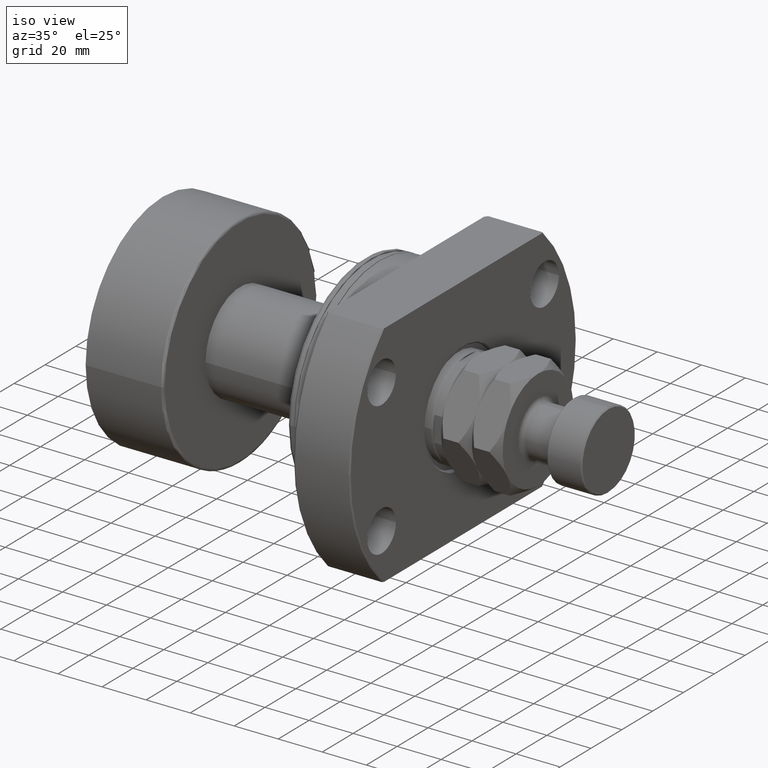
[diagram: clean part render]
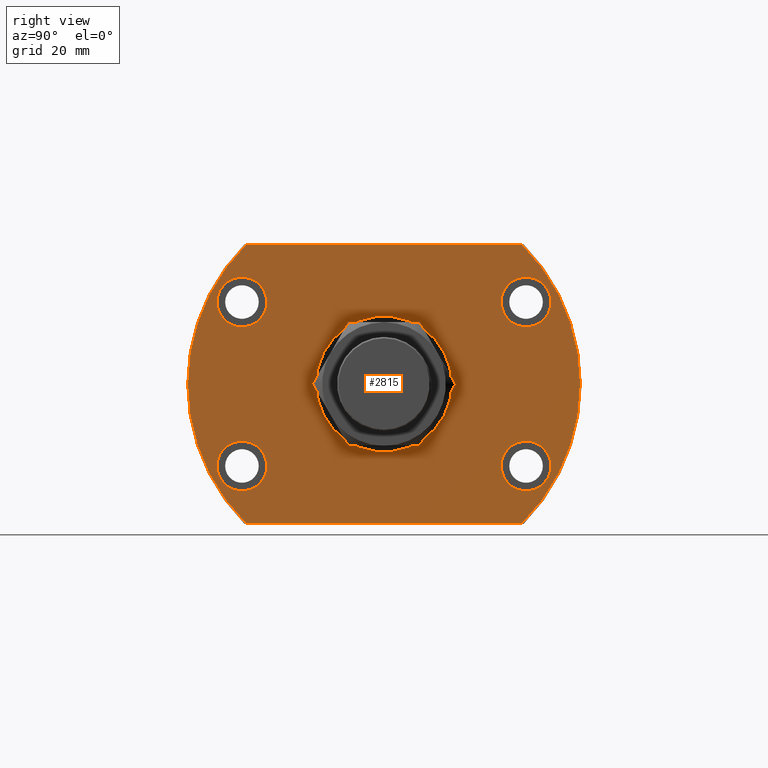
[diagram: tour spotlight — one face highlighted and labeled with its STEP entity id]
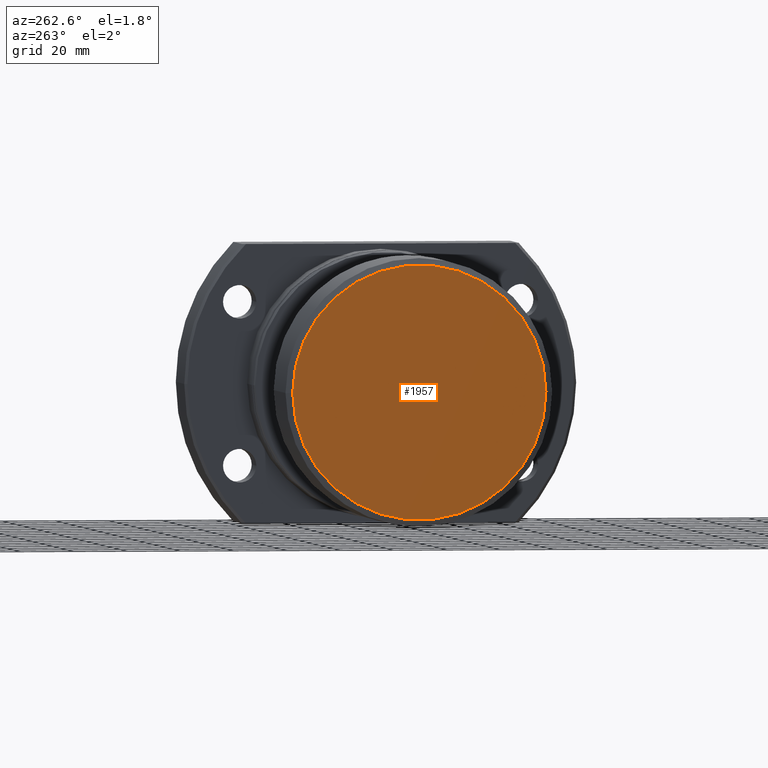
[diagram: tour spotlight — one face highlighted and labeled with its STEP entity id]
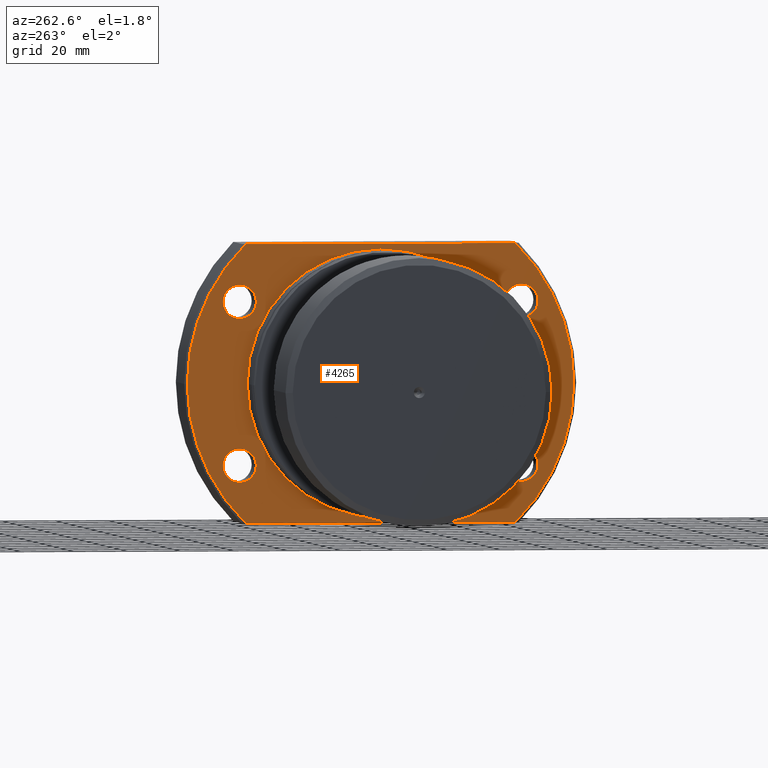
[diagram: tour spotlight — one face highlighted and labeled with its STEP entity id]
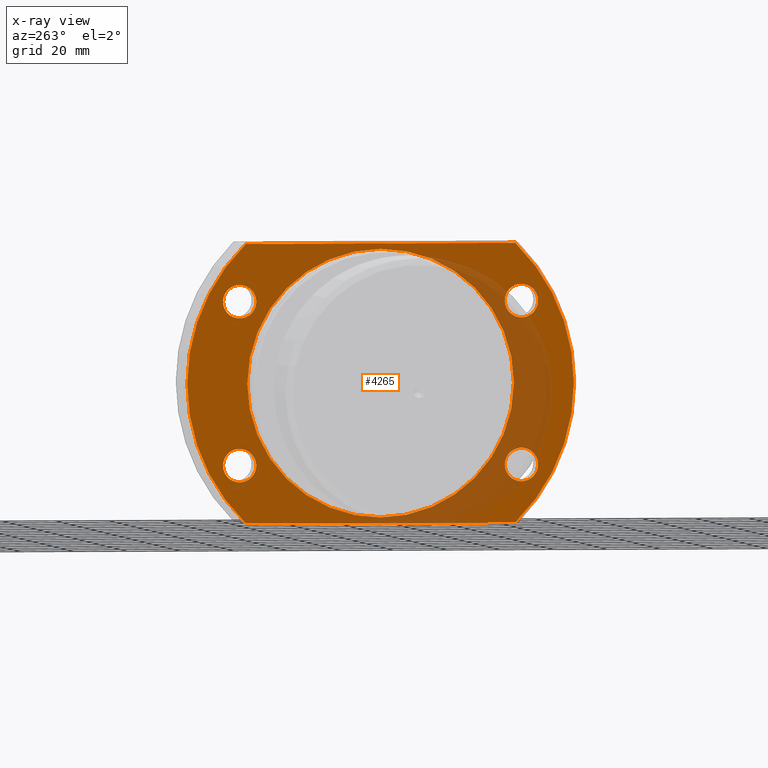
[diagram: x-ray of the same camera — body ghosted, this tour face saturated]
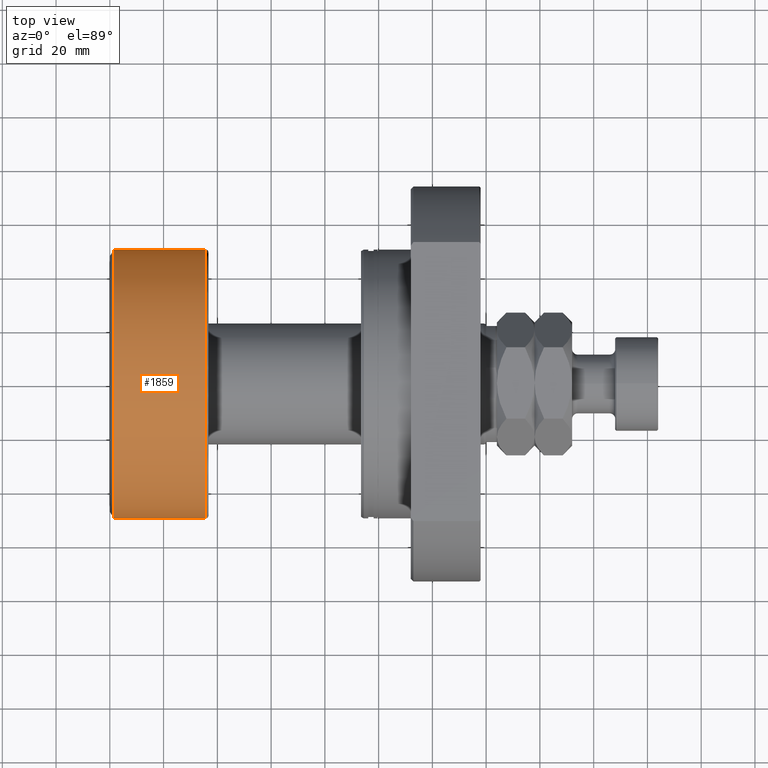
[diagram: tour spotlight — one face highlighted and labeled with its STEP entity id]
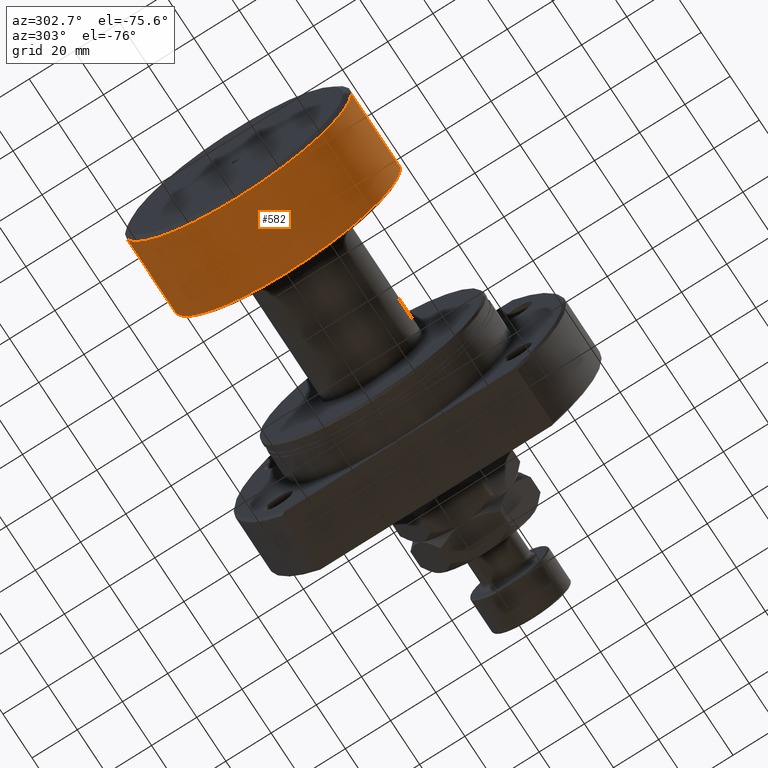
[diagram: tour spotlight — one face highlighted and labeled with its STEP entity id]
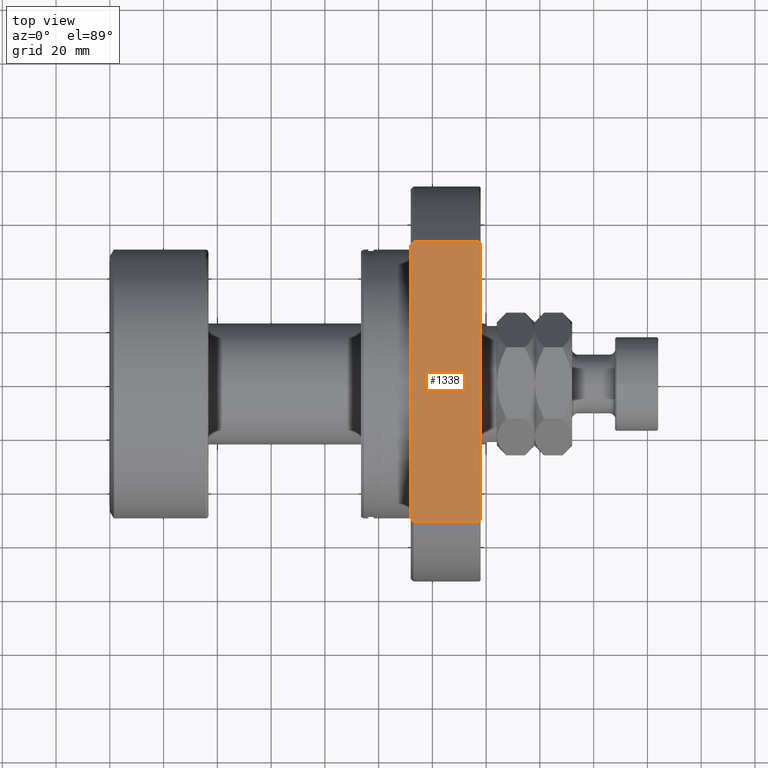
[diagram: tour spotlight — one face highlighted and labeled with its STEP entity id]
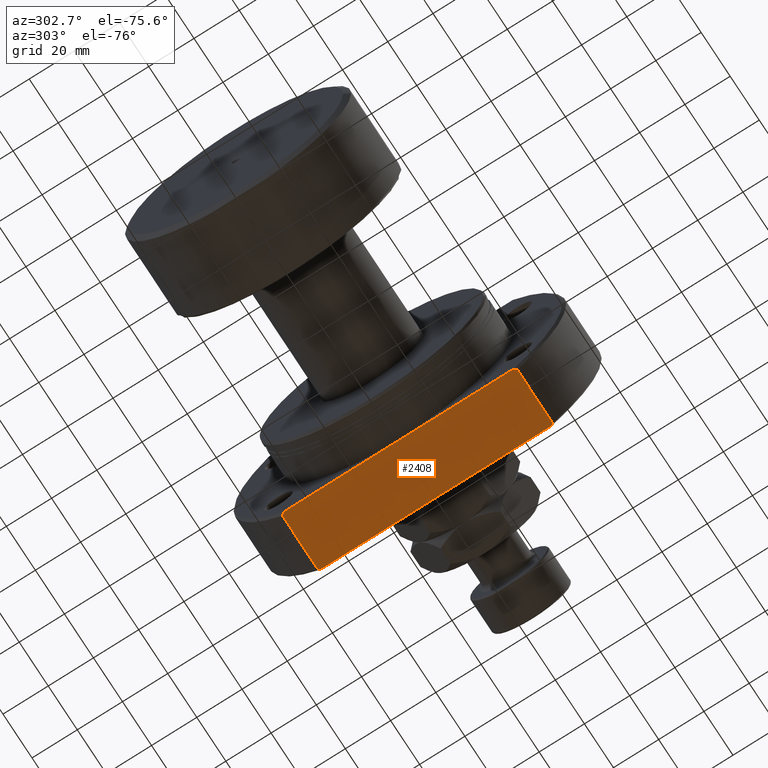
[diagram: tour spotlight — one face highlighted and labeled with its STEP entity id]
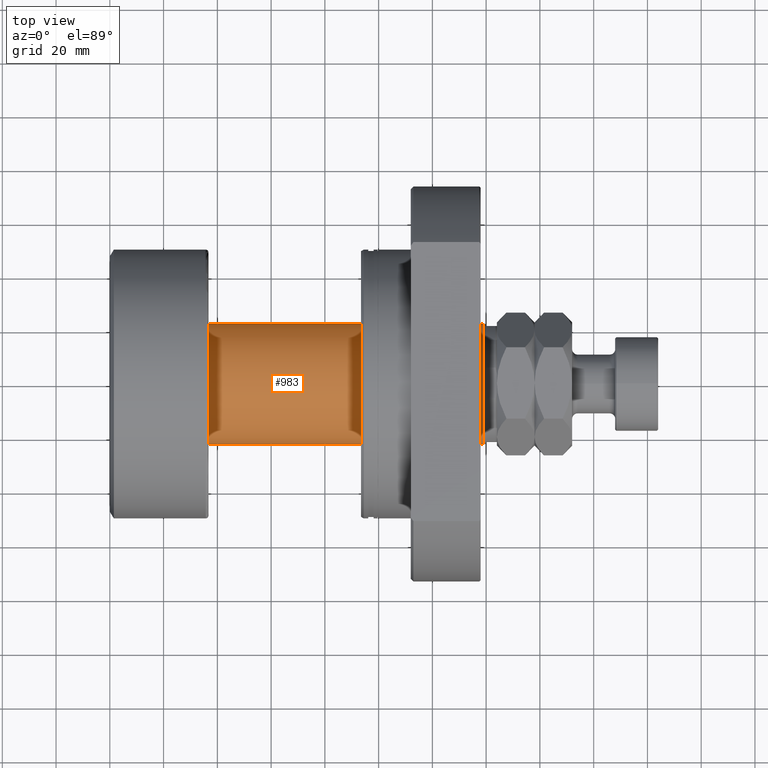
[diagram: tour spotlight — one face highlighted and labeled with its STEP entity id]
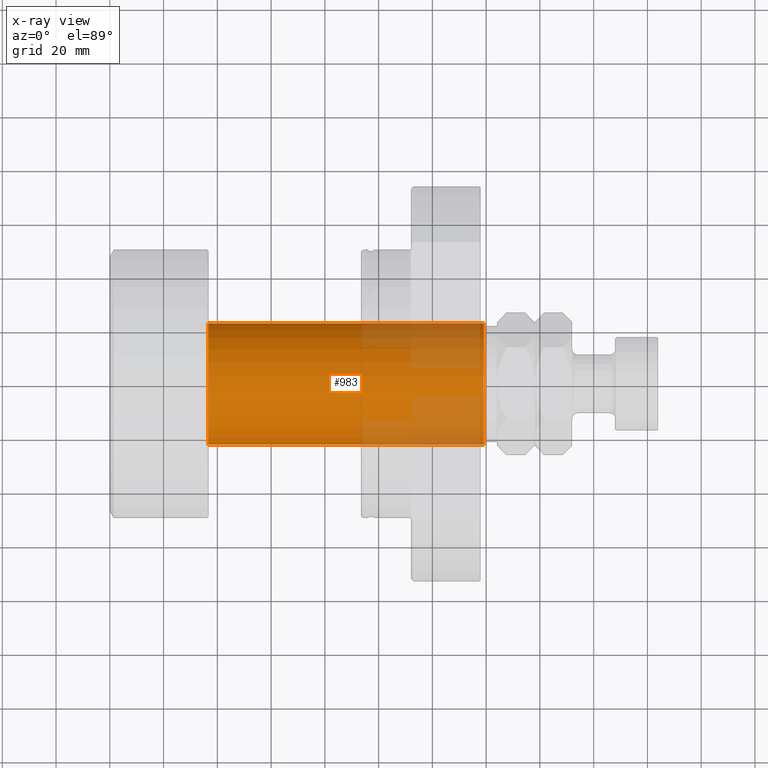
[diagram: x-ray of the same camera — body ghosted, this tour face saturated]
A machine part: a face-by-face anatomy tour. The part has 155 B-rep faces; the first image is the clean iso view, then the 8 largest visible faces are spotlighted one at a time (largest first), each with its STEP entity span.

Face 1 — right view, entity #2815. In plain terms, the highlighted planar face has unit normal (-1, -0, 0).
Definition (entity closure, byte-faithful):
#54 = EDGE_LOOP ( 'NONE', ( #1933, #265, #385, #4372, #1429 ) ) ;
#111 = AXIS2_PLACEMENT_3D ( 'NONE', #955, #1473, #4440 ) ;
#174 = FACE_BOUND ( 'NONE', #4080, .T. ) ;
#190 = CARTESIAN_POINT ( 'NONE',  ( 44.49999999999999289, -1.284477419691526336E-12, 0.000000000000000000 ) ) ;
#197 = VERTEX_POINT ( 'NONE', #2401 ) ;
#216 = DIRECTION ( 'NONE',  ( -1.000000000000000000, -5.504030557965630938E-17, 0.000000000000000000 ) ) ;
#219 = EDGE_CURVE ( 'NONE', #4505, #3651, #343, .T. ) ;
#246 = VERTEX_POINT ( 'NONE', #928 ) ;
#255 = LINE ( 'NONE', #1424, #1759 ) ;
#265 = ORIENTED_EDGE ( 'NONE', *, *, #310, .T. ) ;
#284 = VECTOR ( 'NONE', #4615, 1000.000000000000000 ) ;
#310 = EDGE_CURVE ( 'NONE', #3882, #4505, #1648, .T. ) ;
#341 = EDGE_CURVE ( 'NONE', #3936, #3148, #1727, .T. ) ;
#343 = CIRCLE ( 'NONE', #1329, 73.00000000000001421 ) ;
#373 = DIRECTION ( 'NONE',  ( 1.000000000000000000, -2.888547605177540648E-14, 0.000000000000000000 ) ) ;
#385 = ORIENTED_EDGE ( 'NONE', *, *, #219, .T. ) ;
#439 = DIRECTION ( 'NONE',  ( 1.000000000000000000, -2.888547605177540648E-14, 0.000000000000000000 ) ) ;
#452 = AXIS2_PLACEMENT_3D ( 'NONE', #2992, #457, #2760 ) ;
#457 = DIRECTION ( 'NONE',  ( 1.000000000000000000, -2.886466111666351885E-14, 0.000000000000000000 ) ) ;
#490 = DIRECTION ( 'NONE',  ( 5.504030557965630938E-17, -1.000000000000000000, 0.000000000000000000 ) ) ;
#595 = CARTESIAN_POINT ( 'NONE',  ( 44.49999999999998579, 51.23475382979800230, 52.00000000000000000 ) ) ;
#596 = AXIS2_PLACEMENT_3D ( 'NONE', #3397, #1509, #2256 ) ;
#627 = CARTESIAN_POINT ( 'NONE',  ( 44.49999999999998579, 51.23475382979800941, -52.00000000000000000 ) ) ;
#665 = DIRECTION ( 'NONE',  ( 2.925587700025750053E-14, 1.000000000000000000, 0.000000000000000000 ) ) ;
#670 = ORIENTED_EDGE ( 'NONE', *, *, #2416, .T. ) ;
#738 = EDGE_CURVE ( 'NONE', #4053, #4429, #4067, .T. ) ;
#815 = DIRECTION ( 'NONE',  ( 2.925587700025750053E-14, 1.000000000000000000, 0.000000000000000000 ) ) ;
#818 = DIRECTION ( 'NONE',  ( 2.925587700025750053E-14, 1.000000000000000000, 0.000000000000000000 ) ) ;
#901 = FACE_BOUND ( 'NONE', #3723, .T. ) ;
#922 = FACE_OUTER_BOUND ( 'NONE', #54, .T. ) ;
#928 = CARTESIAN_POINT ( 'NONE',  ( 44.50000000000125056, 43.59999999999871534, 30.50000000000000000 ) ) ;
#951 = FACE_BOUND ( 'NONE', #3502, .T. ) ;
#955 = CARTESIAN_POINT ( 'NONE',  ( 44.49999999999999289, 2.449293598294705330E-15, 0.000000000000000000 ) ) ;
#957 = EDGE_CURVE ( 'NONE', #4686, #1206, #1893, .T. ) ;
#1021 = DIRECTION ( 'NONE',  ( -1.000000000000000000, -5.504030557965630938E-17, 0.000000000000000000 ) ) ;
#1128 = EDGE_CURVE ( 'NONE', #2698, #197, #3185, .T. ) ;
#1165 = ORIENTED_EDGE ( 'NONE', *, *, #1378, .F. ) ;
#1175 = CIRCLE ( 'NONE', #1267, 9.250000000000001776 ) ;
#1206 = VERTEX_POINT ( 'NONE', #1802 ) ;
#1263 = DIRECTION ( 'NONE',  ( 1.000000000000000000, -2.888547605177540648E-14, 0.000000000000000000 ) ) ;
#1267 = AXIS2_PLACEMENT_3D ( 'NONE', #3084, #2754, #1950 ) ;
#1329 = AXIS2_PLACEMENT_3D ( 'NONE', #2831, #3164, #4368 ) ;
#1336 = CARTESIAN_POINT ( 'NONE',  ( 44.50000000000000000, -73.00000000000001421, 0.000000000000000000 ) ) ;
#1378 = EDGE_CURVE ( 'NONE', #3148, #3936, #1175, .T. ) ;
#1424 = CARTESIAN_POINT ( 'NONE',  ( 44.50000000000000000, -73.00000000000001421, -52.00000000000000000 ) ) ;
#1429 = ORIENTED_EDGE ( 'NONE', *, *, #1732, .T. ) ;
#1473 = DIRECTION ( 'NONE',  ( 1.000000000000000000, 5.504030557965630938E-17, -0.000000000000000000 ) ) ;
#1509 = DIRECTION ( 'NONE',  ( 1.000000000000000000, -2.888547605177540648E-14, 0.000000000000000000 ) ) ;
#1536 = VERTEX_POINT ( 'NONE', #595 ) ;
#1544 = DIRECTION ( 'NONE',  ( 1.000000000000000000, 5.504030557965630938E-17, -0.000000000000000000 ) ) ;
#1593 = CARTESIAN_POINT ( 'NONE',  ( 44.49999999999846523, -52.85000000000128750, 30.50000000000000000 ) ) ;
#1600 = CARTESIAN_POINT ( 'NONE',  ( 44.49999999999846523, -52.85000000000128750, -30.50000000000000000 ) ) ;
#1648 = CIRCLE ( 'NONE', #111, 73.00000000000001421 ) ;
#1695 = CARTESIAN_POINT ( 'NONE',  ( 44.49999999999873523, -43.60000000000128040, 30.50000000000000000 ) ) ;
#1711 = CARTESIAN_POINT ( 'NONE',  ( 44.49999999999999289, -25.25000000000129674, 3.092233167847068013E-15 ) ) ;
#1727 = CIRCLE ( 'NONE', #2367, 9.250000000000001776 ) ;
#1732 = EDGE_CURVE ( 'NONE', #3253, #1536, #3753, .T. ) ;
#1759 = VECTOR ( 'NONE', #2966, 1000.000000000000000 ) ;
#1770 = CARTESIAN_POINT ( 'NONE',  ( 44.50000000000178346, 62.09999999999871534, 30.50000000000000000 ) ) ;
#1802 = CARTESIAN_POINT ( 'NONE',  ( 44.49999999999819522, -62.10000000000128750, -30.50000000000000000 ) ) ;
#1860 = CARTESIAN_POINT ( 'NONE',  ( 44.49999999999873523, -43.60000000000128040, -30.50000000000000000 ) ) ;
#1888 = AXIS2_PLACEMENT_3D ( 'NONE', #190, #216, #2492 ) ;
#1893 = CIRCLE ( 'NONE', #596, 9.250000000000001776 ) ;
#1933 = ORIENTED_EDGE ( 'NONE', *, *, #3526, .F. ) ;
#1950 = DIRECTION ( 'NONE',  ( 2.925587700025750053E-14, 1.000000000000000000, 0.000000000000000000 ) ) ;
#1977 = AXIS2_PLACEMENT_3D ( 'NONE', #2908, #1263, #815 ) ;
#2003 = CARTESIAN_POINT ( 'NONE',  ( 44.49999999999999289, 51.94468211472779728, 52.00000000000000000 ) ) ;
#2009 = ORIENTED_EDGE ( 'NONE', *, *, #2597, .F. ) ;
#2051 = ORIENTED_EDGE ( 'NONE', *, *, #738, .T. ) ;
#2063 = AXIS2_PLACEMENT_3D ( 'NONE', #4953, #1544, #3488 ) ;
#2067 = PLANE ( 'NONE',  #2879 ) ;
#2084 = CARTESIAN_POINT ( 'NONE',  ( 44.50000000000179057, 62.09999999999871534, -30.50000000000000000 ) ) ;
#2142 = CARTESIAN_POINT ( 'NONE',  ( 44.50000000000152056, 52.84999999999871534, -30.50000000000000000 ) ) ;
#2256 = DIRECTION ( 'NONE',  ( 2.925587700025750053E-14, 1.000000000000000000, 0.000000000000000000 ) ) ;
#2300 = AXIS2_PLACEMENT_3D ( 'NONE', #4764, #2833, #4023 ) ;
#2367 = AXIS2_PLACEMENT_3D ( 'NONE', #2142, #4831, #665 ) ;
#2389 = AXIS2_PLACEMENT_3D ( 'NONE', #3703, #1021, #2560 ) ;
#2401 = CARTESIAN_POINT ( 'NONE',  ( 44.49999999999819522, -62.10000000000128750, 30.50000000000000000 ) ) ;
#2416 = EDGE_CURVE ( 'NONE', #4429, #4053, #4795, .T. ) ;
#2443 = FACE_BOUND ( 'NONE', #2922, .T. ) ;
#2467 = DIRECTION ( 'NONE',  ( -1.000000000000000000, -5.504030557965630938E-17, 0.000000000000000000 ) ) ;
#2492 = DIRECTION ( 'NONE',  ( 0.000000000000000000, -1.000000000000000000, 0.000000000000000000 ) ) ;
#2495 = CARTESIAN_POINT ( 'NONE',  ( 44.50000000000000000, -73.00000000000001421, 0.000000000000000000 ) ) ;
#2560 = DIRECTION ( 'NONE',  ( 0.000000000000000000, -1.000000000000000000, 0.000000000000000000 ) ) ;
#2581 = EDGE_LOOP ( 'NONE', ( #1165, #4591 ) ) ;
#2597 = EDGE_CURVE ( 'NONE', #3975, #246, #3934, .T. ) ;
#2658 = ORIENTED_EDGE ( 'NONE', *, *, #3902, .F. ) ;
#2698 = VERTEX_POINT ( 'NONE', #1695 ) ;
#2722 = CIRCLE ( 'NONE', #2300, 9.250000000000001776 ) ;
#2754 = DIRECTION ( 'NONE',  ( 1.000000000000000000, -2.888547605177540648E-14, 0.000000000000000000 ) ) ;
#2760 = DIRECTION ( 'NONE',  ( 2.850572630794320387E-14, 1.000000000000000000, 0.000000000000000000 ) ) ;
#2772 = CARTESIAN_POINT ( 'NONE',  ( 44.49999999999999289, -51.23475382979801651, 52.00000000000000000 ) ) ;
#2794 = CIRCLE ( 'NONE', #4645, 9.250000000000001776 ) ;
#2803 = FACE_BOUND ( 'NONE', #2581, .T. ) ;
#2815 = ADVANCED_FACE ( 'NONE', ( #951, #901, #2443, #174, #2803, #922 ), #2067, .F. ) ;
#2831 = CARTESIAN_POINT ( 'NONE',  ( 44.49999999999999289, 2.449293598294705330E-15, 0.000000000000000000 ) ) ;
#2833 = DIRECTION ( 'NONE',  ( 1.000000000000000000, -2.886466111666351885E-14, 0.000000000000000000 ) ) ;
#2879 = AXIS2_PLACEMENT_3D ( 'NONE', #2495, #2467, #490 ) ;
#2908 = CARTESIAN_POINT ( 'NONE',  ( 44.49999999999846523, -52.85000000000128750, 30.50000000000000000 ) ) ;
#2922 = EDGE_LOOP ( 'NONE', ( #3795, #2990 ) ) ;
#2966 = DIRECTION ( 'NONE',  ( -5.504030557965630938E-17, 1.000000000000000000, -0.000000000000000000 ) ) ;
#2990 = ORIENTED_EDGE ( 'NONE', *, *, #4296, .F. ) ;
#2992 = CARTESIAN_POINT ( 'NONE',  ( 44.50000000000152056, 52.84999999999871534, 30.50000000000000000 ) ) ;
#3084 = CARTESIAN_POINT ( 'NONE',  ( 44.50000000000152056, 52.84999999999871534, -30.50000000000000000 ) ) ;
#3138 = DIRECTION ( 'NONE',  ( 2.925587700025750053E-14, 1.000000000000000000, 0.000000000000000000 ) ) ;
#3148 = VERTEX_POINT ( 'NONE', #2084 ) ;
#3164 = DIRECTION ( 'NONE',  ( 1.000000000000000000, 5.504030557965630938E-17, -0.000000000000000000 ) ) ;
#3185 = CIRCLE ( 'NONE', #1977, 9.250000000000001776 ) ;
#3253 = VERTEX_POINT ( 'NONE', #627 ) ;
#3285 = EDGE_CURVE ( 'NONE', #3651, #3253, #255, .T. ) ;
#3397 = CARTESIAN_POINT ( 'NONE',  ( 44.49999999999846523, -52.85000000000128750, -30.50000000000000000 ) ) ;
#3488 = DIRECTION ( 'NONE',  ( -9.505334114941407284E-17, 1.000000000000000000, 0.000000000000000000 ) ) ;
#3502 = EDGE_LOOP ( 'NONE', ( #2051, #670 ) ) ;
#3526 = EDGE_CURVE ( 'NONE', #3882, #1536, #3878, .T. ) ;
#3647 = EDGE_CURVE ( 'NONE', #246, #3975, #2722, .T. ) ;
#3651 = VERTEX_POINT ( 'NONE', #4100 ) ;
#3693 = AXIS2_PLACEMENT_3D ( 'NONE', #1593, #439, #818 ) ;
#3703 = CARTESIAN_POINT ( 'NONE',  ( 44.49999999999999289, -1.284477419691526336E-12, 0.000000000000000000 ) ) ;
#3723 = EDGE_LOOP ( 'NONE', ( #2009, #3971 ) ) ;
#3753 = CIRCLE ( 'NONE', #2063, 73.00000000000001421 ) ;
#3795 = ORIENTED_EDGE ( 'NONE', *, *, #1128, .F. ) ;
#3878 = LINE ( 'NONE', #2003, #284 ) ;
#3882 = VERTEX_POINT ( 'NONE', #2772 ) ;
#3902 = EDGE_CURVE ( 'NONE', #1206, #4686, #2794, .T. ) ;
#3907 = ORIENTED_EDGE ( 'NONE', *, *, #957, .F. ) ;
#3920 = CARTESIAN_POINT ( 'NONE',  ( 44.50000000000124345, 43.59999999999871534, -30.50000000000000000 ) ) ;
#3934 = CIRCLE ( 'NONE', #452, 9.250000000000001776 ) ;
#3936 = VERTEX_POINT ( 'NONE', #3920 ) ;
#3971 = ORIENTED_EDGE ( 'NONE', *, *, #3647, .F. ) ;
#3975 = VERTEX_POINT ( 'NONE', #1770 ) ;
#4023 = DIRECTION ( 'NONE',  ( 2.850572630794320387E-14, 1.000000000000000000, 0.000000000000000000 ) ) ;
#4053 = VERTEX_POINT ( 'NONE', #4415 ) ;
#4067 = CIRCLE ( 'NONE', #1888, 25.24999999999855049 ) ;
#4080 = EDGE_LOOP ( 'NONE', ( #3907, #2658 ) ) ;
#4095 = CIRCLE ( 'NONE', #3693, 9.250000000000001776 ) ;
#4100 = CARTESIAN_POINT ( 'NONE',  ( 44.49999999999999289, -51.23475382979800230, -52.00000000000000000 ) ) ;
#4296 = EDGE_CURVE ( 'NONE', #197, #2698, #4095, .T. ) ;
#4368 = DIRECTION ( 'NONE',  ( -9.505334114941407284E-17, 1.000000000000000000, 0.000000000000000000 ) ) ;
#4372 = ORIENTED_EDGE ( 'NONE', *, *, #3285, .T. ) ;
#4415 = CARTESIAN_POINT ( 'NONE',  ( 44.49999999999999289, 25.24999999999726441, 0.000000000000000000 ) ) ;
#4429 = VERTEX_POINT ( 'NONE', #1711 ) ;
#4440 = DIRECTION ( 'NONE',  ( -9.505334114941407284E-17, 1.000000000000000000, 0.000000000000000000 ) ) ;
#4505 = VERTEX_POINT ( 'NONE', #1336 ) ;
#4591 = ORIENTED_EDGE ( 'NONE', *, *, #341, .F. ) ;
#4615 = DIRECTION ( 'NONE',  ( -0.000000000000000000, 1.000000000000000000, 0.000000000000000000 ) ) ;
#4645 = AXIS2_PLACEMENT_3D ( 'NONE', #1600, #373, #3138 ) ;
#4686 = VERTEX_POINT ( 'NONE', #1860 ) ;
#4764 = CARTESIAN_POINT ( 'NONE',  ( 44.50000000000152056, 52.84999999999871534, 30.50000000000000000 ) ) ;
#4795 = CIRCLE ( 'NONE', #2389, 25.24999999999855049 ) ;
#4831 = DIRECTION ( 'NONE',  ( 1.000000000000000000, -2.888547605177540648E-14, 0.000000000000000000 ) ) ;
#4953 = CARTESIAN_POINT ( 'NONE',  ( 44.49999999999999289, 2.449293598294705330E-15, 0.000000000000000000 ) ) ;

Face 2 — auxiliary view, entity #1957. In plain terms, the highlighted planar face has unit normal (-1, -0, 0).
Definition (entity closure, byte-faithful):
#66 = DIRECTION ( 'NONE',  ( 1.069542322069065647E-17, -1.000000000000000000, 0.000000000000000000 ) ) ;
#112 = VERTEX_POINT ( 'NONE', #1118 ) ;
#368 = CARTESIAN_POINT ( 'NONE',  ( 4.801007089984315887E-15, 47.50000000000000000, 0.000000000000000000 ) ) ;
#456 = CIRCLE ( 'NONE', #532, 47.50000000000000000 ) ;
#492 = VERTEX_POINT ( 'NONE', #368 ) ;
#532 = AXIS2_PLACEMENT_3D ( 'NONE', #1782, #2932, #1014 ) ;
#579 = CARTESIAN_POINT ( 'NONE',  ( 2.654519846483561026E-15, 0.000000000000000000, 0.000000000000000000 ) ) ;
#606 = DIRECTION ( 'NONE',  ( 1.069542322069059484E-17, -1.000000000000000000, 0.000000000000000000 ) ) ;
#690 = CARTESIAN_POINT ( 'NONE',  ( 5.817072295949928215E-15, -47.50000000000000000, 5.970153145843347150E-15 ) ) ;
#924 = VERTEX_POINT ( 'NONE', #1156 ) ;
#926 = EDGE_CURVE ( 'NONE', #112, #924, #4227, .T. ) ;
#1014 = DIRECTION ( 'NONE',  ( 1.069542322069065647E-17, -1.000000000000000000, 0.000000000000000000 ) ) ;
#1074 = ORIENTED_EDGE ( 'NONE', *, *, #3275, .T. ) ;
#1118 = CARTESIAN_POINT ( 'NONE',  ( 2.654519846483561026E-15, 2.541142108230750183E-16, -2.074999999999993516 ) ) ;
#1156 = CARTESIAN_POINT ( 'NONE',  ( 2.654519846483561026E-15, 0.000000000000000000, 2.074999999999993516 ) ) ;
#1331 = EDGE_LOOP ( 'NONE', ( #1074, #4171 ) ) ;
#1423 = CIRCLE ( 'NONE', #1667, 2.074999999999993516 ) ;
#1667 = AXIS2_PLACEMENT_3D ( 'NONE', #579, #2865, #606 ) ;
#1782 = CARTESIAN_POINT ( 'NONE',  ( 5.309039692967122051E-15, 5.678242641172895614E-32, 0.000000000000000000 ) ) ;
#1957 = ADVANCED_FACE ( 'NONE', ( #4111, #2178 ), #2586, .T. ) ;
#2160 = DIRECTION ( 'NONE',  ( -1.000000000000000000, -1.069542322069065801E-17, 0.000000000000000000 ) ) ;
#2178 = FACE_OUTER_BOUND ( 'NONE', #1331, .T. ) ;
#2253 = EDGE_CURVE ( 'NONE', #2950, #492, #2466, .T. ) ;
#2307 = DIRECTION ( 'NONE',  ( 1.069542322069059484E-17, -1.000000000000000000, 0.000000000000000000 ) ) ;
#2348 = EDGE_CURVE ( 'NONE', #924, #112, #1423, .T. ) ;
#2466 = CIRCLE ( 'NONE', #4871, 47.50000000000000000 ) ;
#2532 = ORIENTED_EDGE ( 'NONE', *, *, #926, .T. ) ;
#2538 = DIRECTION ( 'NONE',  ( 1.069542322069065801E-17, -1.000000000000000000, 0.000000000000000000 ) ) ;
#2547 = AXIS2_PLACEMENT_3D ( 'NONE', #4130, #2160, #2538 ) ;
#2586 = PLANE ( 'NONE',  #2547 ) ;
#2865 = DIRECTION ( 'NONE',  ( 1.000000000000000000, 1.069542322069065801E-17, 0.000000000000000000 ) ) ;
#2932 = DIRECTION ( 'NONE',  ( -1.000000000000000000, -1.069542322069065801E-17, -0.000000000000000000 ) ) ;
#2940 = AXIS2_PLACEMENT_3D ( 'NONE', #3480, #4225, #2307 ) ;
#2950 = VERTEX_POINT ( 'NONE', #690 ) ;
#3005 = ORIENTED_EDGE ( 'NONE', *, *, #2348, .T. ) ;
#3012 = EDGE_LOOP ( 'NONE', ( #3005, #2532 ) ) ;
#3172 = DIRECTION ( 'NONE',  ( -1.000000000000000000, -1.069542322069065801E-17, -0.000000000000000000 ) ) ;
#3275 = EDGE_CURVE ( 'NONE', #492, #2950, #456, .T. ) ;
#3480 = CARTESIAN_POINT ( 'NONE',  ( 2.654519846483561026E-15, 0.000000000000000000, 0.000000000000000000 ) ) ;
#4111 = FACE_BOUND ( 'NONE', #3012, .T. ) ;
#4130 = CARTESIAN_POINT ( 'NONE',  ( 2.654519846483561026E-15, 2.839121320586447807E-32, 0.000000000000000000 ) ) ;
#4171 = ORIENTED_EDGE ( 'NONE', *, *, #2253, .T. ) ;
#4225 = DIRECTION ( 'NONE',  ( 1.000000000000000000, 1.069542322069065801E-17, 0.000000000000000000 ) ) ;
#4227 = CIRCLE ( 'NONE', #2940, 2.074999999999993516 ) ;
#4378 = CARTESIAN_POINT ( 'NONE',  ( 5.309039692967122051E-15, 5.678242641172895614E-32, 0.000000000000000000 ) ) ;
#4871 = AXIS2_PLACEMENT_3D ( 'NONE', #4378, #3172, #66 ) ;

Face 3 — auxiliary view, entity #4265. An x-ray twin of the same camera follows (body ghosted, this face saturated) — the face is partly hidden behind the body. In plain terms, the highlighted planar face has unit normal (1, 0, 0).
Definition (entity closure, byte-faithful):
#58 = CARTESIAN_POINT ( 'NONE',  ( 18.50000000000000355, 72.49999999999992895, 0.000000000000000000 ) ) ;
#128 = EDGE_CURVE ( 'NONE', #2623, #3466, #2857, .T. ) ;
#135 = EDGE_CURVE ( 'NONE', #2007, #2582, #745, .T. ) ;
#191 = DIRECTION ( 'NONE',  ( 0.000000000000000000, 1.000000000000000000, 0.000000000000000000 ) ) ;
#271 = DIRECTION ( 'NONE',  ( 0.000000000000000000, 1.000000000000000000, 0.000000000000000000 ) ) ;
#354 = CIRCLE ( 'NONE', #4861, 72.49999999999992895 ) ;
#356 = DIRECTION ( 'NONE',  ( -6.938893903907228378E-17, 1.000000000000000000, 0.000000000000000000 ) ) ;
#363 = CARTESIAN_POINT ( 'NONE',  ( 18.50000000000000711, -52.85000000000052722, 30.50000000000000000 ) ) ;
#398 = VERTEX_POINT ( 'NONE', #3691 ) ;
#477 = ORIENTED_EDGE ( 'NONE', *, *, #4809, .T. ) ;
#499 = VERTEX_POINT ( 'NONE', #3808 ) ;
#520 = CARTESIAN_POINT ( 'NONE',  ( 18.50000000000000711, -50.00000000000000000, 52.00000000000000000 ) ) ;
#537 = CARTESIAN_POINT ( 'NONE',  ( 18.50000000000000355, -50.00000000000000000, 6.123233995736766085E-15 ) ) ;
#664 = AXIS2_PLACEMENT_3D ( 'NONE', #4585, #3923, #1303 ) ;
#675 = VECTOR ( 'NONE', #1647, 1000.000000000000000 ) ;
#694 = AXIS2_PLACEMENT_3D ( 'NONE', #363, #3483, #1915 ) ;
#716 = FACE_BOUND ( 'NONE', #2174, .T. ) ;
#722 = DIRECTION ( 'NONE',  ( 1.000000000000000000, 5.504030557965630938E-17, -0.000000000000000000 ) ) ;
#745 = CIRCLE ( 'NONE', #664, 6.249999999999998224 ) ;
#808 = DIRECTION ( 'NONE',  ( 1.000000000000000000, 5.504030557965630938E-17, -0.000000000000000000 ) ) ;
#929 = LINE ( 'NONE', #520, #675 ) ;
#963 = EDGE_LOOP ( 'NONE', ( #2080, #3884 ) ) ;
#1004 = DIRECTION ( 'NONE',  ( 1.000000000000000000, 5.504030557965630938E-17, -0.000000000000000000 ) ) ;
#1051 = EDGE_CURVE ( 'NONE', #3761, #2623, #4073, .T. ) ;
#1072 = CARTESIAN_POINT ( 'NONE',  ( 18.50000000000000711, -52.85000000000053433, -30.50000000000000000 ) ) ;
#1075 = DIRECTION ( 'NONE',  ( 1.000000000000000000, 5.504030557965630938E-17, -0.000000000000000000 ) ) ;
#1093 = EDGE_LOOP ( 'NONE', ( #4198, #4257, #3696, #477, #3336 ) ) ;
#1102 = DIRECTION ( 'NONE',  ( 1.000000000000000000, 5.504030557965630938E-17, -0.000000000000000000 ) ) ;
#1109 = FACE_BOUND ( 'NONE', #1403, .T. ) ;
#1111 = AXIS2_PLACEMENT_3D ( 'NONE', #1786, #1075, #4916 ) ;
#1112 = CIRCLE ( 'NONE', #694, 6.249999999999998224 ) ;
#1129 = DIRECTION ( 'NONE',  ( 1.000000000000000000, 5.504030557965630938E-17, -0.000000000000000000 ) ) ;
#1171 = AXIS2_PLACEMENT_3D ( 'NONE', #1234, #1293, #1380 ) ;
#1184 = AXIS2_PLACEMENT_3D ( 'NONE', #1800, #722, #271 ) ;
#1234 = CARTESIAN_POINT ( 'NONE',  ( 18.50000000000000711, 1.018245653223641951E-15, 0.000000000000000000 ) ) ;
#1290 = VERTEX_POINT ( 'NONE', #4963 ) ;
#1293 = DIRECTION ( 'NONE',  ( 1.000000000000000000, 5.504030557965630938E-17, -0.000000000000000000 ) ) ;
#1303 = DIRECTION ( 'NONE',  ( 0.000000000000000000, 1.000000000000000000, 0.000000000000000000 ) ) ;
#1352 = CIRCLE ( 'NONE', #3683, 6.249999999999998224 ) ;
#1380 = DIRECTION ( 'NONE',  ( -4.785444071660162135E-17, 1.000000000000000000, 0.000000000000000000 ) ) ;
#1403 = EDGE_LOOP ( 'NONE', ( #1551, #3386 ) ) ;
#1436 = EDGE_CURVE ( 'NONE', #3466, #3490, #929, .T. ) ;
#1453 = CARTESIAN_POINT ( 'NONE',  ( 18.50000000000000355, 50.51979809935892263, -52.00000000000000000 ) ) ;
#1524 = DIRECTION ( 'NONE',  ( -4.785444071660162135E-17, 1.000000000000000000, 0.000000000000000000 ) ) ;
#1529 = EDGE_CURVE ( 'NONE', #3490, #3822, #354, .T. ) ;
#1551 = ORIENTED_EDGE ( 'NONE', *, *, #135, .T. ) ;
#1647 = DIRECTION ( 'NONE',  ( 5.504030557965630938E-17, -1.000000000000000000, 0.000000000000000000 ) ) ;
#1705 = CARTESIAN_POINT ( 'NONE',  ( 18.50000000000000000, 46.59999999999946851, -30.50000000000000000 ) ) ;
#1735 = CARTESIAN_POINT ( 'NONE',  ( 18.50000000000000000, 59.09999999999947562, 30.50000000000000000 ) ) ;
#1786 = CARTESIAN_POINT ( 'NONE',  ( 18.50000000000000000, 52.84999999999947562, 30.50000000000000000 ) ) ;
#1799 = ORIENTED_EDGE ( 'NONE', *, *, #4834, .T. ) ;
#1800 = CARTESIAN_POINT ( 'NONE',  ( 18.50000000000000000, 52.84999999999947562, 30.50000000000000000 ) ) ;
#1827 = CIRCLE ( 'NONE', #3115, 50.00000000000000000 ) ;
#1836 = AXIS2_PLACEMENT_3D ( 'NONE', #2390, #3943, #3460 ) ;
#1857 = ORIENTED_EDGE ( 'NONE', *, *, #3538, .T. ) ;
#1879 = ORIENTED_EDGE ( 'NONE', *, *, #3038, .T. ) ;
#1897 = DIRECTION ( 'NONE',  ( 1.000000000000000000, 5.504030557965630938E-17, -0.000000000000000000 ) ) ;
#1915 = DIRECTION ( 'NONE',  ( 0.000000000000000000, 1.000000000000000000, 0.000000000000000000 ) ) ;
#1942 = PLANE ( 'NONE',  #1836 ) ;
#2007 = VERTEX_POINT ( 'NONE', #2135 ) ;
#2043 = EDGE_CURVE ( 'NONE', #398, #4942, #4637, .T. ) ;
#2080 = ORIENTED_EDGE ( 'NONE', *, *, #4623, .T. ) ;
#2135 = CARTESIAN_POINT ( 'NONE',  ( 18.50000000000000711, -46.60000000000053433, -30.50000000000000000 ) ) ;
#2174 = EDGE_LOOP ( 'NONE', ( #3816, #4275 ) ) ;
#2195 = DIRECTION ( 'NONE',  ( 0.000000000000000000, 1.000000000000000000, 0.000000000000000000 ) ) ;
#2216 = VERTEX_POINT ( 'NONE', #537 ) ;
#2260 = FACE_BOUND ( 'NONE', #4396, .T. ) ;
#2269 = ORIENTED_EDGE ( 'NONE', *, *, #4630, .T. ) ;
#2385 = EDGE_CURVE ( 'NONE', #4942, #398, #4642, .T. ) ;
#2390 = CARTESIAN_POINT ( 'NONE',  ( 18.50000000000000711, -50.00000000000000000, 0.000000000000000000 ) ) ;
#2482 = EDGE_CURVE ( 'NONE', #2582, #2007, #1352, .T. ) ;
#2484 = AXIS2_PLACEMENT_3D ( 'NONE', #4573, #1129, #356 ) ;
#2535 = DIRECTION ( 'NONE',  ( 0.000000000000000000, 1.000000000000000000, 0.000000000000000000 ) ) ;
#2582 = VERTEX_POINT ( 'NONE', #4915 ) ;
#2623 = VERTEX_POINT ( 'NONE', #58 ) ;
#2653 = CARTESIAN_POINT ( 'NONE',  ( 18.50000000000000711, 1.018245653223641951E-15, 0.000000000000000000 ) ) ;
#2762 = CARTESIAN_POINT ( 'NONE',  ( 18.50000000000000711, -50.00000000000000000, -52.00000000000000000 ) ) ;
#2857 = CIRCLE ( 'NONE', #4852, 72.49999999999992895 ) ;
#2918 = VERTEX_POINT ( 'NONE', #4091 ) ;
#3038 = EDGE_CURVE ( 'NONE', #3720, #2918, #1112, .T. ) ;
#3039 = EDGE_LOOP ( 'NONE', ( #1879, #2269 ) ) ;
#3113 = CARTESIAN_POINT ( 'NONE',  ( 18.50000000000000711, -50.51979809935892263, 52.00000000000000000 ) ) ;
#3115 = AXIS2_PLACEMENT_3D ( 'NONE', #3594, #808, #4324 ) ;
#3117 = AXIS2_PLACEMENT_3D ( 'NONE', #4125, #4822, #2195 ) ;
#3286 = CIRCLE ( 'NONE', #1111, 6.249999999999998224 ) ;
#3326 = DIRECTION ( 'NONE',  ( -4.785444071660162135E-17, 1.000000000000000000, 0.000000000000000000 ) ) ;
#3328 = CARTESIAN_POINT ( 'NONE',  ( 18.50000000000000711, -50.51979809935892263, -52.00000000000000000 ) ) ;
#3336 = ORIENTED_EDGE ( 'NONE', *, *, #1529, .F. ) ;
#3348 = FACE_BOUND ( 'NONE', #963, .T. ) ;
#3386 = ORIENTED_EDGE ( 'NONE', *, *, #2482, .T. ) ;
#3452 = LINE ( 'NONE', #2762, #3774 ) ;
#3460 = DIRECTION ( 'NONE',  ( -5.504030557965630938E-17, 1.000000000000000000, 0.000000000000000000 ) ) ;
#3466 = VERTEX_POINT ( 'NONE', #3571 ) ;
#3483 = DIRECTION ( 'NONE',  ( 1.000000000000000000, 5.504030557965630938E-17, -0.000000000000000000 ) ) ;
#3490 = VERTEX_POINT ( 'NONE', #3113 ) ;
#3538 = EDGE_CURVE ( 'NONE', #1290, #2216, #1827, .T. ) ;
#3571 = CARTESIAN_POINT ( 'NONE',  ( 18.50000000000000355, 50.51979809935892263, 52.00000000000000000 ) ) ;
#3594 = CARTESIAN_POINT ( 'NONE',  ( 18.50000000000000000, 1.018245653223641557E-15, 0.000000000000000000 ) ) ;
#3613 = CIRCLE ( 'NONE', #2484, 50.00000000000000000 ) ;
#3683 = AXIS2_PLACEMENT_3D ( 'NONE', #1072, #4544, #3819 ) ;
#3691 = CARTESIAN_POINT ( 'NONE',  ( 18.50000000000000000, 59.09999999999946851, -30.50000000000000000 ) ) ;
#3696 = ORIENTED_EDGE ( 'NONE', *, *, #1051, .F. ) ;
#3720 = VERTEX_POINT ( 'NONE', #3811 ) ;
#3741 = EDGE_CURVE ( 'NONE', #499, #4451, #3843, .T. ) ;
#3752 = CARTESIAN_POINT ( 'NONE',  ( 18.50000000000000000, 52.84999999999946851, -30.50000000000000000 ) ) ;
#3761 = VERTEX_POINT ( 'NONE', #1453 ) ;
#3774 = VECTOR ( 'NONE', #3859, 1000.000000000000000 ) ;
#3800 = CARTESIAN_POINT ( 'NONE',  ( 18.50000000000000711, -52.85000000000052722, 30.50000000000000000 ) ) ;
#3806 = FACE_OUTER_BOUND ( 'NONE', #1093, .T. ) ;
#3808 = CARTESIAN_POINT ( 'NONE',  ( 18.50000000000000000, 46.59999999999947562, 30.50000000000000000 ) ) ;
#3811 = CARTESIAN_POINT ( 'NONE',  ( 18.50000000000000711, -46.60000000000052722, 30.50000000000000000 ) ) ;
#3816 = ORIENTED_EDGE ( 'NONE', *, *, #2043, .T. ) ;
#3819 = DIRECTION ( 'NONE',  ( 0.000000000000000000, 1.000000000000000000, 0.000000000000000000 ) ) ;
#3822 = VERTEX_POINT ( 'NONE', #3328 ) ;
#3843 = CIRCLE ( 'NONE', #1184, 6.249999999999998224 ) ;
#3859 = DIRECTION ( 'NONE',  ( 5.504030557965630938E-17, -1.000000000000000000, 0.000000000000000000 ) ) ;
#3884 = ORIENTED_EDGE ( 'NONE', *, *, #3741, .T. ) ;
#3923 = DIRECTION ( 'NONE',  ( 1.000000000000000000, 5.504030557965630938E-17, -0.000000000000000000 ) ) ;
#3939 = CIRCLE ( 'NONE', #4564, 6.249999999999998224 ) ;
#3943 = DIRECTION ( 'NONE',  ( 1.000000000000000000, 5.504030557965630938E-17, -0.000000000000000000 ) ) ;
#4073 = CIRCLE ( 'NONE', #1171, 72.49999999999992895 ) ;
#4091 = CARTESIAN_POINT ( 'NONE',  ( 18.50000000000000711, -59.10000000000052722, 30.50000000000000000 ) ) ;
#4125 = CARTESIAN_POINT ( 'NONE',  ( 18.50000000000000000, 52.84999999999946851, -30.50000000000000000 ) ) ;
#4198 = ORIENTED_EDGE ( 'NONE', *, *, #1436, .F. ) ;
#4257 = ORIENTED_EDGE ( 'NONE', *, *, #128, .F. ) ;
#4265 = ADVANCED_FACE ( 'NONE', ( #3348, #4549, #1109, #716, #2260, #3806 ), #1942, .F. ) ;
#4275 = ORIENTED_EDGE ( 'NONE', *, *, #2385, .T. ) ;
#4324 = DIRECTION ( 'NONE',  ( -6.938893903907228378E-17, 1.000000000000000000, 0.000000000000000000 ) ) ;
#4396 = EDGE_LOOP ( 'NONE', ( #1857, #1799 ) ) ;
#4451 = VERTEX_POINT ( 'NONE', #1735 ) ;
#4462 = CARTESIAN_POINT ( 'NONE',  ( 18.50000000000000711, 1.018245653223641951E-15, 0.000000000000000000 ) ) ;
#4544 = DIRECTION ( 'NONE',  ( 1.000000000000000000, 5.504030557965630938E-17, -0.000000000000000000 ) ) ;
#4549 = FACE_BOUND ( 'NONE', #3039, .T. ) ;
#4564 = AXIS2_PLACEMENT_3D ( 'NONE', #3800, #1102, #2535 ) ;
#4573 = CARTESIAN_POINT ( 'NONE',  ( 18.50000000000000000, 1.018245653223641557E-15, 0.000000000000000000 ) ) ;
#4585 = CARTESIAN_POINT ( 'NONE',  ( 18.50000000000000711, -52.85000000000053433, -30.50000000000000000 ) ) ;
#4623 = EDGE_CURVE ( 'NONE', #4451, #499, #3286, .T. ) ;
#4630 = EDGE_CURVE ( 'NONE', #2918, #3720, #3939, .T. ) ;
#4637 = CIRCLE ( 'NONE', #4710, 6.249999999999998224 ) ;
#4642 = CIRCLE ( 'NONE', #3117, 6.249999999999998224 ) ;
#4710 = AXIS2_PLACEMENT_3D ( 'NONE', #3752, #4873, #191 ) ;
#4809 = EDGE_CURVE ( 'NONE', #3761, #3822, #3452, .T. ) ;
#4822 = DIRECTION ( 'NONE',  ( 1.000000000000000000, 5.504030557965630938E-17, -0.000000000000000000 ) ) ;
#4834 = EDGE_CURVE ( 'NONE', #2216, #1290, #3613, .T. ) ;
#4852 = AXIS2_PLACEMENT_3D ( 'NONE', #2653, #1897, #1524 ) ;
#4861 = AXIS2_PLACEMENT_3D ( 'NONE', #4462, #1004, #3326 ) ;
#4873 = DIRECTION ( 'NONE',  ( 1.000000000000000000, 5.504030557965630938E-17, -0.000000000000000000 ) ) ;
#4915 = CARTESIAN_POINT ( 'NONE',  ( 18.50000000000000711, -59.10000000000053433, -30.50000000000000000 ) ) ;
#4916 = DIRECTION ( 'NONE',  ( 0.000000000000000000, 1.000000000000000000, 0.000000000000000000 ) ) ;
#4942 = VERTEX_POINT ( 'NONE', #1705 ) ;
#4963 = CARTESIAN_POINT ( 'NONE',  ( 18.49999999999999645, 50.00000000000000000, 0.000000000000000000 ) ) ;

Face 4 — top view, entity #1859. In plain terms, the highlighted cylindrical surface (partial cylindrical patch) has radius 50 mm, axis along (-1, -0, -0).
Definition (entity closure, byte-faithful):
#73 = CARTESIAN_POINT ( 'NONE',  ( 0.000000000000000000, 0.000000000000000000, 0.000000000000000000 ) ) ;
#122 = DIRECTION ( 'NONE',  ( -1.000000000000000000, -1.069542322069065801E-17, -0.000000000000000000 ) ) ;
#264 = CARTESIAN_POINT ( 'NONE',  ( 35.70000000000000284, 50.00000000000000000, 6.123233995736766085E-15 ) ) ;
#275 = EDGE_CURVE ( 'NONE', #344, #4306, #1251, .T. ) ;
#344 = VERTEX_POINT ( 'NONE', #4117 ) ;
#442 = DIRECTION ( 'NONE',  ( -1.000000000000000000, -1.069542322069065801E-17, -0.000000000000000000 ) ) ;
#561 = CARTESIAN_POINT ( 'NONE',  ( 35.70000000000000284, -50.00000000000000000, 0.000000000000000000 ) ) ;
#811 = CARTESIAN_POINT ( 'NONE',  ( 35.70000000000000284, 3.818266089786565135E-16, 0.000000000000000000 ) ) ;
#848 = AXIS2_PLACEMENT_3D ( 'NONE', #73, #442, #2801 ) ;
#1248 = DIRECTION ( 'NONE',  ( 8.673617379884035472E-18, -1.000000000000000000, 0.000000000000000000 ) ) ;
#1251 = CIRCLE ( 'NONE', #1968, 50.00000000000000000 ) ;
#1743 = LINE ( 'NONE', #4015, #4247 ) ;
#1756 = AXIS2_PLACEMENT_3D ( 'NONE', #811, #4670, #2353 ) ;
#1859 = ADVANCED_FACE ( 'NONE', ( #3948 ), #3543, .T. ) ;
#1960 = LINE ( 'NONE', #4223, #2403 ) ;
#1968 = AXIS2_PLACEMENT_3D ( 'NONE', #3547, #4687, #1248 ) ;
#2108 = EDGE_LOOP ( 'NONE', ( #3676, #2980, #3643, #4325 ) ) ;
#2351 = VERTEX_POINT ( 'NONE', #561 ) ;
#2353 = DIRECTION ( 'NONE',  ( 0.000000000000000000, -1.000000000000000000, 0.000000000000000000 ) ) ;
#2403 = VECTOR ( 'NONE', #4672, 1000.000000000000000 ) ;
#2619 = EDGE_CURVE ( 'NONE', #2351, #4141, #2710, .T. ) ;
#2710 = CIRCLE ( 'NONE', #1756, 50.00000000000000000 ) ;
#2801 = DIRECTION ( 'NONE',  ( 1.069542322069065955E-17, -1.000000000000000000, 0.000000000000000000 ) ) ;
#2980 = ORIENTED_EDGE ( 'NONE', *, *, #4081, .T. ) ;
#3508 = CARTESIAN_POINT ( 'NONE',  ( 1.500000000000005551, 50.00000000000000000, 0.000000000000000000 ) ) ;
#3543 = CYLINDRICAL_SURFACE ( 'NONE', #848, 50.00000000000000000 ) ;
#3547 = CARTESIAN_POINT ( 'NONE',  ( 1.500000000000005995, 1.604313483103604941E-17, 0.000000000000000000 ) ) ;
#3643 = ORIENTED_EDGE ( 'NONE', *, *, #275, .F. ) ;
#3676 = ORIENTED_EDGE ( 'NONE', *, *, #2619, .T. ) ;
#3948 = FACE_OUTER_BOUND ( 'NONE', #2108, .T. ) ;
#4015 = CARTESIAN_POINT ( 'NONE',  ( -5.347711610345329959E-16, 50.00000000000000000, 6.123233995736766085E-15 ) ) ;
#4081 = EDGE_CURVE ( 'NONE', #4141, #4306, #1743, .T. ) ;
#4117 = CARTESIAN_POINT ( 'NONE',  ( 1.500000000000006217, -50.00000000000000000, 6.123233995736766085E-15 ) ) ;
#4141 = VERTEX_POINT ( 'NONE', #264 ) ;
#4223 = CARTESIAN_POINT ( 'NONE',  ( 5.347711610345329959E-16, -50.00000000000000000, 0.000000000000000000 ) ) ;
#4247 = VECTOR ( 'NONE', #122, 1000.000000000000000 ) ;
#4306 = VERTEX_POINT ( 'NONE', #3508 ) ;
#4325 = ORIENTED_EDGE ( 'NONE', *, *, #4749, .F. ) ;
#4670 = DIRECTION ( 'NONE',  ( -1.000000000000000000, -1.069542322069065801E-17, -0.000000000000000000 ) ) ;
#4672 = DIRECTION ( 'NONE',  ( -1.000000000000000000, -1.069542322069065801E-17, -0.000000000000000000 ) ) ;
#4687 = DIRECTION ( 'NONE',  ( -1.000000000000000000, -1.069542322069065801E-17, -0.000000000000000000 ) ) ;
#4749 = EDGE_CURVE ( 'NONE', #2351, #344, #1960, .T. ) ;

Face 5 — auxiliary view, entity #582. In plain terms, the highlighted cylindrical surface (partial cylindrical patch) has radius 50 mm, axis along (-1, -0, -0).
Definition (entity closure, byte-faithful):
#119 = FACE_OUTER_BOUND ( 'NONE', #4417, .T. ) ;
#122 = DIRECTION ( 'NONE',  ( -1.000000000000000000, -1.069542322069065801E-17, -0.000000000000000000 ) ) ;
#260 = CARTESIAN_POINT ( 'NONE',  ( 35.70000000000000284, 3.818266089786565135E-16, 0.000000000000000000 ) ) ;
#264 = CARTESIAN_POINT ( 'NONE',  ( 35.70000000000000284, 50.00000000000000000, 6.123233995736766085E-15 ) ) ;
#344 = VERTEX_POINT ( 'NONE', #4117 ) ;
#561 = CARTESIAN_POINT ( 'NONE',  ( 35.70000000000000284, -50.00000000000000000, 0.000000000000000000 ) ) ;
#582 = ADVANCED_FACE ( 'NONE', ( #119 ), #3632, .T. ) ;
#866 = EDGE_CURVE ( 'NONE', #4141, #2351, #2782, .T. ) ;
#878 = DIRECTION ( 'NONE',  ( 1.069542322069065955E-17, -1.000000000000000000, 0.000000000000000000 ) ) ;
#1063 = EDGE_CURVE ( 'NONE', #4306, #344, #1815, .T. ) ;
#1439 = DIRECTION ( 'NONE',  ( -1.000000000000000000, -1.069542322069065801E-17, -0.000000000000000000 ) ) ;
#1609 = ORIENTED_EDGE ( 'NONE', *, *, #866, .T. ) ;
#1697 = ORIENTED_EDGE ( 'NONE', *, *, #1063, .F. ) ;
#1733 = AXIS2_PLACEMENT_3D ( 'NONE', #4756, #4341, #878 ) ;
#1743 = LINE ( 'NONE', #4015, #4247 ) ;
#1754 = DIRECTION ( 'NONE',  ( 8.673617379884035472E-18, -1.000000000000000000, 0.000000000000000000 ) ) ;
#1815 = CIRCLE ( 'NONE', #4628, 50.00000000000000000 ) ;
#1960 = LINE ( 'NONE', #4223, #2403 ) ;
#2332 = ORIENTED_EDGE ( 'NONE', *, *, #4081, .F. ) ;
#2351 = VERTEX_POINT ( 'NONE', #561 ) ;
#2403 = VECTOR ( 'NONE', #4672, 1000.000000000000000 ) ;
#2782 = CIRCLE ( 'NONE', #4468, 50.00000000000000000 ) ;
#2907 = ORIENTED_EDGE ( 'NONE', *, *, #4749, .T. ) ;
#3123 = DIRECTION ( 'NONE',  ( -1.000000000000000000, -1.069542322069065801E-17, -0.000000000000000000 ) ) ;
#3505 = CARTESIAN_POINT ( 'NONE',  ( 1.500000000000005995, 1.604313483103604941E-17, 0.000000000000000000 ) ) ;
#3508 = CARTESIAN_POINT ( 'NONE',  ( 1.500000000000005551, 50.00000000000000000, 0.000000000000000000 ) ) ;
#3632 = CYLINDRICAL_SURFACE ( 'NONE', #1733, 50.00000000000000000 ) ;
#4015 = CARTESIAN_POINT ( 'NONE',  ( -5.347711610345329959E-16, 50.00000000000000000, 6.123233995736766085E-15 ) ) ;
#4081 = EDGE_CURVE ( 'NONE', #4141, #4306, #1743, .T. ) ;
#4117 = CARTESIAN_POINT ( 'NONE',  ( 1.500000000000006217, -50.00000000000000000, 6.123233995736766085E-15 ) ) ;
#4141 = VERTEX_POINT ( 'NONE', #264 ) ;
#4223 = CARTESIAN_POINT ( 'NONE',  ( 5.347711610345329959E-16, -50.00000000000000000, 0.000000000000000000 ) ) ;
#4247 = VECTOR ( 'NONE', #122, 1000.000000000000000 ) ;
#4306 = VERTEX_POINT ( 'NONE', #3508 ) ;
#4341 = DIRECTION ( 'NONE',  ( -1.000000000000000000, -1.069542322069065801E-17, -0.000000000000000000 ) ) ;
#4417 = EDGE_LOOP ( 'NONE', ( #2332, #1609, #2907, #1697 ) ) ;
#4433 = DIRECTION ( 'NONE',  ( 0.000000000000000000, -1.000000000000000000, 0.000000000000000000 ) ) ;
#4468 = AXIS2_PLACEMENT_3D ( 'NONE', #260, #1439, #4433 ) ;
#4628 = AXIS2_PLACEMENT_3D ( 'NONE', #3505, #3123, #1754 ) ;
#4672 = DIRECTION ( 'NONE',  ( -1.000000000000000000, -1.069542322069065801E-17, -0.000000000000000000 ) ) ;
#4749 = EDGE_CURVE ( 'NONE', #2351, #344, #1960, .T. ) ;
#4756 = CARTESIAN_POINT ( 'NONE',  ( 0.000000000000000000, 0.000000000000000000, 0.000000000000000000 ) ) ;

Face 6 — top view, entity #1338. In plain terms, the highlighted planar face has unit normal (0, 0, 1).
Definition (entity closure, byte-faithful):
#19 = CARTESIAN_POINT ( 'NONE',  ( 44.16705041831157530, -51.70831132091212368, 52.00000000000000000 ) ) ;
#41 = LINE ( 'NONE', #4210, #586 ) ;
#109 = B_SPLINE_CURVE_WITH_KNOTS ( 'NONE', 3,
 ( #1387, #1843, #2162, #223 ),
 .UNSPECIFIED., .F., .F.,
 ( 4, 4 ),
 ( 0.1948392449670404425, 0.1957153114758534707 ),
 .UNSPECIFIED. ) ;
#223 = CARTESIAN_POINT ( 'NONE',  ( 44.00000000000007816, 51.94468211472652541, 52.00000000000000000 ) ) ;
#284 = VECTOR ( 'NONE', #4615, 1000.000000000000000 ) ;
#307 = ORIENTED_EDGE ( 'NONE', *, *, #435, .T. ) ;
#309 = DIRECTION ( 'NONE',  ( 1.000000000000000000, -2.886466111666351885E-14, -0.000000000000000000 ) ) ;
#423 = DIRECTION ( 'NONE',  ( 0.000000000000000000, 0.000000000000000000, 1.000000000000000000 ) ) ;
#426 = VERTEX_POINT ( 'NONE', #2952 ) ;
#435 = EDGE_CURVE ( 'NONE', #2123, #1230, #41, .T. ) ;
#464 = EDGE_CURVE ( 'NONE', #1230, #3882, #3912, .T. ) ;
#520 = CARTESIAN_POINT ( 'NONE',  ( 18.50000000000000711, -50.00000000000000000, 52.00000000000000000 ) ) ;
#586 = VECTOR ( 'NONE', #1567, 1000.000000000000000 ) ;
#595 = CARTESIAN_POINT ( 'NONE',  ( 44.49999999999998579, 51.23475382979800230, 52.00000000000000000 ) ) ;
#675 = VECTOR ( 'NONE', #1647, 1000.000000000000000 ) ;
#816 = CARTESIAN_POINT ( 'NONE',  ( 19.49999999999999289, -51.94468211472581487, 52.00000000000000000 ) ) ;
#831 = ORIENTED_EDGE ( 'NONE', *, *, #2280, .T. ) ;
#929 = LINE ( 'NONE', #520, #675 ) ;
#1067 = CARTESIAN_POINT ( 'NONE',  ( 44.00000000000007816, -51.94468211472652541, 52.00000000000000000 ) ) ;
#1121 = ORIENTED_EDGE ( 'NONE', *, *, #1436, .T. ) ;
#1154 = B_SPLINE_CURVE_WITH_KNOTS ( 'NONE', 3,
 ( #3557, #3981, #2742, #816 ),
 .UNSPECIFIED., .F., .F.,
 ( 4, 4 ),
 ( 0.1939618309439028465, 0.1957182682511685312 ),
 .UNSPECIFIED. ) ;
#1230 = VERTEX_POINT ( 'NONE', #1067 ) ;
#1338 = ADVANCED_FACE ( 'NONE', ( #1929 ), #1626, .T. ) ;
#1387 = CARTESIAN_POINT ( 'NONE',  ( 44.49999999999998579, 51.23475382979800230, 52.00000000000000000 ) ) ;
#1436 = EDGE_CURVE ( 'NONE', #3466, #3490, #929, .T. ) ;
#1461 = CARTESIAN_POINT ( 'NONE',  ( -6.175615574477433256E-13, 51.94468211472779728, 52.00000000000000000 ) ) ;
#1464 = CARTESIAN_POINT ( 'NONE',  ( 19.49999999999999289, 51.94468211472723596, 52.00000000000000000 ) ) ;
#1536 = VERTEX_POINT ( 'NONE', #595 ) ;
#1543 = CARTESIAN_POINT ( 'NONE',  ( 44.33372060663039349, -51.47167105509207374, 52.00000000000000000 ) ) ;
#1567 = DIRECTION ( 'NONE',  ( 1.000000000000000000, -2.886466111666351885E-14, -0.000000000000000000 ) ) ;
#1626 = PLANE ( 'NONE',  #2701 ) ;
#1647 = DIRECTION ( 'NONE',  ( 5.504030557965630938E-17, -1.000000000000000000, 0.000000000000000000 ) ) ;
#1843 = CARTESIAN_POINT ( 'NONE',  ( 44.33373614671723573, 51.47164891335712156, 52.00000000000000000 ) ) ;
#1863 = CARTESIAN_POINT ( 'NONE',  ( 19.49999999999999289, -51.94468211472581487, 52.00000000000000000 ) ) ;
#1929 = FACE_OUTER_BOUND ( 'NONE', #4878, .T. ) ;
#1935 = VERTEX_POINT ( 'NONE', #4012 ) ;
#2003 = CARTESIAN_POINT ( 'NONE',  ( 44.49999999999999289, 51.94468211472779728, 52.00000000000000000 ) ) ;
#2123 = VERTEX_POINT ( 'NONE', #1863 ) ;
#2162 = CARTESIAN_POINT ( 'NONE',  ( 44.16706589136728667, 51.70828942705217912, 52.00000000000000000 ) ) ;
#2198 = CARTESIAN_POINT ( 'NONE',  ( 18.83174783879943348, 50.99588310400712032, 52.00000000000000000 ) ) ;
#2223 = ORIENTED_EDGE ( 'NONE', *, *, #2878, .T. ) ;
#2280 = EDGE_CURVE ( 'NONE', #3490, #2123, #1154, .T. ) ;
#2474 = VECTOR ( 'NONE', #309, 1000.000000000000000 ) ;
#2592 = EDGE_CURVE ( 'NONE', #1935, #426, #4893, .T. ) ;
#2639 = CARTESIAN_POINT ( 'NONE',  ( 18.50000000000000355, 50.51979809935892263, 52.00000000000000000 ) ) ;
#2701 = AXIS2_PLACEMENT_3D ( 'NONE', #3470, #423, #3548 ) ;
#2742 = CARTESIAN_POINT ( 'NONE',  ( 19.16504727819932796, -51.47073513786417465, 52.00000000000000000 ) ) ;
#2772 = CARTESIAN_POINT ( 'NONE',  ( 44.49999999999999289, -51.23475382979801651, 52.00000000000000000 ) ) ;
#2818 = ORIENTED_EDGE ( 'NONE', *, *, #2592, .F. ) ;
#2878 = EDGE_CURVE ( 'NONE', #1536, #426, #109, .T. ) ;
#2952 = CARTESIAN_POINT ( 'NONE',  ( 44.00000000000007816, 51.94468211472652541, 52.00000000000000000 ) ) ;
#3077 = CARTESIAN_POINT ( 'NONE',  ( 44.00000000000007816, -51.94468211472652541, 52.00000000000000000 ) ) ;
#3113 = CARTESIAN_POINT ( 'NONE',  ( 18.50000000000000711, -50.51979809935892263, 52.00000000000000000 ) ) ;
#3114 = ORIENTED_EDGE ( 'NONE', *, *, #4593, .T. ) ;
#3437 = B_SPLINE_CURVE_WITH_KNOTS ( 'NONE', 3,
 ( #1464, #4453, #2198, #2639 ),
 .UNSPECIFIED., .F., .F.,
 ( 4, 4 ),
 ( 0.08127662313014140383, 0.08302041353061252738 ),
 .UNSPECIFIED. ) ;
#3438 = ORIENTED_EDGE ( 'NONE', *, *, #464, .T. ) ;
#3466 = VERTEX_POINT ( 'NONE', #3571 ) ;
#3470 = CARTESIAN_POINT ( 'NONE',  ( -6.175615574477433256E-13, 51.94468211472779728, 52.00000000000000000 ) ) ;
#3490 = VERTEX_POINT ( 'NONE', #3113 ) ;
#3526 = EDGE_CURVE ( 'NONE', #3882, #1536, #3878, .T. ) ;
#3548 = DIRECTION ( 'NONE',  ( 1.000000000000000000, 0.000000000000000000, -0.000000000000000000 ) ) ;
#3557 = CARTESIAN_POINT ( 'NONE',  ( 18.50000000000000711, -50.51979809935892263, 52.00000000000000000 ) ) ;
#3571 = CARTESIAN_POINT ( 'NONE',  ( 18.50000000000000355, 50.51979809935892263, 52.00000000000000000 ) ) ;
#3878 = LINE ( 'NONE', #2003, #284 ) ;
#3882 = VERTEX_POINT ( 'NONE', #2772 ) ;
#3912 = B_SPLINE_CURVE_WITH_KNOTS ( 'NONE', 3,
 ( #3077, #19, #1543, #4552 ),
 .UNSPECIFIED., .F., .F.,
 ( 4, 4 ),
 ( 0.08127369397833111853, 0.08214353487046273383 ),
 .UNSPECIFIED. ) ;
#3981 = CARTESIAN_POINT ( 'NONE',  ( 18.83168451724293746, -50.99579223244746373, 52.00000000000000000 ) ) ;
#4012 = CARTESIAN_POINT ( 'NONE',  ( 19.49999999999999289, 51.94468211472723596, 52.00000000000000000 ) ) ;
#4210 = CARTESIAN_POINT ( 'NONE',  ( -3.615163723935665985E-12, -51.94468211472525354, 52.00000000000000000 ) ) ;
#4303 = ORIENTED_EDGE ( 'NONE', *, *, #3526, .T. ) ;
#4453 = CARTESIAN_POINT ( 'NONE',  ( 19.16511005864717632, 51.47082397011282495, 52.00000000000000000 ) ) ;
#4552 = CARTESIAN_POINT ( 'NONE',  ( 44.49999999999999289, -51.23475382979801651, 52.00000000000000000 ) ) ;
#4593 = EDGE_CURVE ( 'NONE', #1935, #3466, #3437, .T. ) ;
#4615 = DIRECTION ( 'NONE',  ( -0.000000000000000000, 1.000000000000000000, 0.000000000000000000 ) ) ;
#4878 = EDGE_LOOP ( 'NONE', ( #3114, #1121, #831, #307, #3438, #4303, #2223, #2818 ) ) ;
#4893 = LINE ( 'NONE', #1461, #2474 ) ;

Face 7 — auxiliary view, entity #2408. In plain terms, the highlighted planar face has unit normal (0, 0, 1).
Definition (entity closure, byte-faithful):
#235 = CARTESIAN_POINT ( 'NONE',  ( -6.175615574477433256E-13, 51.94468211472779018, -52.00000000000000711 ) ) ;
#255 = LINE ( 'NONE', #1424, #1759 ) ;
#268 = CARTESIAN_POINT ( 'NONE',  ( 44.33372060663040060, -51.47167105509207374, -52.00000000000000000 ) ) ;
#283 = EDGE_CURVE ( 'NONE', #4388, #3651, #3243, .T. ) ;
#286 = AXIS2_PLACEMENT_3D ( 'NONE', #3268, #1761, #4078 ) ;
#320 = DIRECTION ( 'NONE',  ( 1.000000000000000000, -2.886466111666351885E-14, -0.000000000000000000 ) ) ;
#405 = CARTESIAN_POINT ( 'NONE',  ( 44.16706589136729377, 51.70828942705217912, -52.00000000000000000 ) ) ;
#503 = VERTEX_POINT ( 'NONE', #1491 ) ;
#627 = CARTESIAN_POINT ( 'NONE',  ( 44.49999999999998579, 51.23475382979800941, -52.00000000000000000 ) ) ;
#819 = B_SPLINE_CURVE_WITH_KNOTS ( 'NONE', 3,
 ( #2328, #2781, #4668, #1281 ),
 .UNSPECIFIED., .F., .F.,
 ( 4, 4 ),
 ( 0.08127662313014138995, 0.08302041353061251350 ),
 .UNSPECIFIED. ) ;
#854 = CARTESIAN_POINT ( 'NONE',  ( -3.615163723935665985E-12, -51.94468211472526065, -51.99999999999999289 ) ) ;
#1221 = EDGE_CURVE ( 'NONE', #4900, #503, #3413, .T. ) ;
#1281 = CARTESIAN_POINT ( 'NONE',  ( 18.50000000000000355, 50.51979809935892263, -52.00000000000000000 ) ) ;
#1310 = CARTESIAN_POINT ( 'NONE',  ( 19.49999999999999289, 51.94468211472722885, -52.00000000000000711 ) ) ;
#1404 = FACE_OUTER_BOUND ( 'NONE', #4516, .T. ) ;
#1424 = CARTESIAN_POINT ( 'NONE',  ( 44.50000000000000000, -73.00000000000001421, -52.00000000000000000 ) ) ;
#1453 = CARTESIAN_POINT ( 'NONE',  ( 18.50000000000000355, 50.51979809935892263, -52.00000000000000000 ) ) ;
#1491 = CARTESIAN_POINT ( 'NONE',  ( 44.00000000000007816, 51.94468211472651831, -52.00000000000000711 ) ) ;
#1528 = EDGE_CURVE ( 'NONE', #2733, #4388, #4321, .T. ) ;
#1532 = CARTESIAN_POINT ( 'NONE',  ( 44.00000000000007816, 51.94468211472651831, -52.00000000000000711 ) ) ;
#1731 = PLANE ( 'NONE',  #286 ) ;
#1759 = VECTOR ( 'NONE', #2966, 1000.000000000000000 ) ;
#1761 = DIRECTION ( 'NONE',  ( 0.000000000000000000, 0.000000000000000000, 1.000000000000000000 ) ) ;
#2328 = CARTESIAN_POINT ( 'NONE',  ( 19.49999999999999289, 51.94468211472722885, -52.00000000000000711 ) ) ;
#2408 = ADVANCED_FACE ( 'NONE', ( #1404 ), #1731, .F. ) ;
#2452 = ORIENTED_EDGE ( 'NONE', *, *, #283, .F. ) ;
#2497 = ORIENTED_EDGE ( 'NONE', *, *, #4809, .F. ) ;
#2513 = B_SPLINE_CURVE_WITH_KNOTS ( 'NONE', 3,
 ( #3313, #4766, #4839, #4862 ),
 .UNSPECIFIED., .F., .F.,
 ( 4, 4 ),
 ( 0.1939618309439029020, 0.1957182682511685867 ),
 .UNSPECIFIED. ) ;
#2566 = EDGE_CURVE ( 'NONE', #3253, #503, #4393, .T. ) ;
#2733 = VERTEX_POINT ( 'NONE', #4736 ) ;
#2762 = CARTESIAN_POINT ( 'NONE',  ( 18.50000000000000711, -50.00000000000000000, -52.00000000000000000 ) ) ;
#2774 = ORIENTED_EDGE ( 'NONE', *, *, #3504, .F. ) ;
#2781 = CARTESIAN_POINT ( 'NONE',  ( 19.16511005864717632, 51.47082397011282495, -52.00000000000000000 ) ) ;
#2966 = DIRECTION ( 'NONE',  ( -5.504030557965630938E-17, 1.000000000000000000, -0.000000000000000000 ) ) ;
#3238 = ORIENTED_EDGE ( 'NONE', *, *, #1221, .T. ) ;
#3243 = B_SPLINE_CURVE_WITH_KNOTS ( 'NONE', 3,
 ( #3716, #4488, #268, #4136 ),
 .UNSPECIFIED., .F., .F.,
 ( 4, 4 ),
 ( 0.08127369397833110465, 0.08214353487046274771 ),
 .UNSPECIFIED. ) ;
#3253 = VERTEX_POINT ( 'NONE', #627 ) ;
#3268 = CARTESIAN_POINT ( 'NONE',  ( -6.175615574477433256E-13, 51.94468211472779728, -52.00000000000000000 ) ) ;
#3273 = EDGE_CURVE ( 'NONE', #3822, #2733, #2513, .T. ) ;
#3285 = EDGE_CURVE ( 'NONE', #3651, #3253, #255, .T. ) ;
#3313 = CARTESIAN_POINT ( 'NONE',  ( 18.50000000000000711, -50.51979809935892263, -52.00000000000000000 ) ) ;
#3328 = CARTESIAN_POINT ( 'NONE',  ( 18.50000000000000711, -50.51979809935892263, -52.00000000000000000 ) ) ;
#3413 = LINE ( 'NONE', #235, #4786 ) ;
#3452 = LINE ( 'NONE', #2762, #3774 ) ;
#3504 = EDGE_CURVE ( 'NONE', #4900, #3761, #819, .T. ) ;
#3651 = VERTEX_POINT ( 'NONE', #4100 ) ;
#3716 = CARTESIAN_POINT ( 'NONE',  ( 44.00000000000007816, -51.94468211472653252, -51.99999999999999289 ) ) ;
#3761 = VERTEX_POINT ( 'NONE', #1453 ) ;
#3774 = VECTOR ( 'NONE', #3859, 1000.000000000000000 ) ;
#3799 = ORIENTED_EDGE ( 'NONE', *, *, #3285, .F. ) ;
#3822 = VERTEX_POINT ( 'NONE', #3328 ) ;
#3859 = DIRECTION ( 'NONE',  ( 5.504030557965630938E-17, -1.000000000000000000, 0.000000000000000000 ) ) ;
#3888 = CARTESIAN_POINT ( 'NONE',  ( 44.00000000000007816, -51.94468211472653252, -51.99999999999999289 ) ) ;
#4029 = ORIENTED_EDGE ( 'NONE', *, *, #3273, .F. ) ;
#4078 = DIRECTION ( 'NONE',  ( 1.000000000000000000, 0.000000000000000000, -0.000000000000000000 ) ) ;
#4100 = CARTESIAN_POINT ( 'NONE',  ( 44.49999999999999289, -51.23475382979800230, -52.00000000000000000 ) ) ;
#4136 = CARTESIAN_POINT ( 'NONE',  ( 44.49999999999999289, -51.23475382979800230, -52.00000000000000000 ) ) ;
#4144 = ORIENTED_EDGE ( 'NONE', *, *, #1528, .F. ) ;
#4252 = CARTESIAN_POINT ( 'NONE',  ( 44.49999999999998579, 51.23475382979800941, -52.00000000000000000 ) ) ;
#4321 = LINE ( 'NONE', #854, #4944 ) ;
#4388 = VERTEX_POINT ( 'NONE', #3888 ) ;
#4393 = B_SPLINE_CURVE_WITH_KNOTS ( 'NONE', 3,
 ( #4252, #4971, #405, #1532 ),
 .UNSPECIFIED., .F., .F.,
 ( 4, 4 ),
 ( 0.1948392449670404702, 0.1957153114758534707 ),
 .UNSPECIFIED. ) ;
#4488 = CARTESIAN_POINT ( 'NONE',  ( 44.16705041831157530, -51.70831132091211657, -52.00000000000000000 ) ) ;
#4516 = EDGE_LOOP ( 'NONE', ( #3238, #4843, #3799, #2452, #4144, #4029, #2497, #2774 ) ) ;
#4668 = CARTESIAN_POINT ( 'NONE',  ( 18.83174783879943703, 50.99588310400711322, -52.00000000000000000 ) ) ;
#4736 = CARTESIAN_POINT ( 'NONE',  ( 19.49999999999999289, -51.94468211472582198, -51.99999999999999289 ) ) ;
#4766 = CARTESIAN_POINT ( 'NONE',  ( 18.83168451724294101, -50.99579223244747794, -52.00000000000000000 ) ) ;
#4786 = VECTOR ( 'NONE', #4933, 1000.000000000000000 ) ;
#4809 = EDGE_CURVE ( 'NONE', #3761, #3822, #3452, .T. ) ;
#4839 = CARTESIAN_POINT ( 'NONE',  ( 19.16504727819932796, -51.47073513786417465, -52.00000000000000000 ) ) ;
#4843 = ORIENTED_EDGE ( 'NONE', *, *, #2566, .F. ) ;
#4862 = CARTESIAN_POINT ( 'NONE',  ( 19.49999999999999289, -51.94468211472582198, -51.99999999999999289 ) ) ;
#4900 = VERTEX_POINT ( 'NONE', #1310 ) ;
#4933 = DIRECTION ( 'NONE',  ( 1.000000000000000000, -2.886466111666351885E-14, -0.000000000000000000 ) ) ;
#4944 = VECTOR ( 'NONE', #320, 1000.000000000000000 ) ;
#4971 = CARTESIAN_POINT ( 'NONE',  ( 44.33373614671723573, 51.47164891335710735, -52.00000000000000000 ) ) ;

Face 8 — top view, entity #983. An x-ray twin of the same camera follows (body ghosted, this face saturated) — the face is partly hidden behind the body. In plain terms, the highlighted cylindrical surface (partial cylindrical patch) has radius 22.5 mm, axis along (-1, -0, -0).
Definition (entity closure, byte-faithful):
#27 = CARTESIAN_POINT ( 'NONE',  ( 139.0667575123237896, -22.50000000000019185, 0.000000000000000000 ) ) ;
#166 = ORIENTED_EDGE ( 'NONE', *, *, #964, .T. ) ;
#297 = CARTESIAN_POINT ( 'NONE',  ( -2.406470224655408490E-16, 22.50000000000009592, 2.755455298081556216E-15 ) ) ;
#329 = EDGE_LOOP ( 'NONE', ( #166, #2598, #1477, #4052 ) ) ;
#376 = EDGE_CURVE ( 'NONE', #4976, #2086, #4065, .T. ) ;
#686 = DIRECTION ( 'NONE',  ( 1.069542322069065955E-17, -1.000000000000000000, 0.000000000000000000 ) ) ;
#747 = CARTESIAN_POINT ( 'NONE',  ( 139.0667575123237896, 22.50000000000018829, 2.755455298081568049E-15 ) ) ;
#930 = VECTOR ( 'NONE', #3863, 1000.000000000000000 ) ;
#964 = EDGE_CURVE ( 'NONE', #3447, #4976, #2288, .T. ) ;
#983 = ADVANCED_FACE ( 'NONE', ( #3825 ), #1179, .T. ) ;
#1131 = VERTEX_POINT ( 'NONE', #3980 ) ;
#1179 = CYLINDRICAL_SURFACE ( 'NONE', #2696, 22.50000000000009592 ) ;
#1226 = DIRECTION ( 'NONE',  ( 0.000000000000000000, -1.000000000000000000, 0.000000000000000000 ) ) ;
#1477 = ORIENTED_EDGE ( 'NONE', *, *, #3464, .F. ) ;
#1649 = CARTESIAN_POINT ( 'NONE',  ( 36.70000000000000284, 3.925220321993471577E-16, 0.000000000000000000 ) ) ;
#1938 = CARTESIAN_POINT ( 'NONE',  ( 139.0667575123237896, 1.487377827523464785E-15, 0.000000000000000000 ) ) ;
#2086 = VERTEX_POINT ( 'NONE', #3506 ) ;
#2137 = EDGE_CURVE ( 'NONE', #3447, #1131, #3399, .T. ) ;
#2288 = CIRCLE ( 'NONE', #4860, 22.50000000000019185 ) ;
#2598 = ORIENTED_EDGE ( 'NONE', *, *, #376, .T. ) ;
#2665 = DIRECTION ( 'NONE',  ( 0.000000000000000000, -1.000000000000000000, 0.000000000000000000 ) ) ;
#2696 = AXIS2_PLACEMENT_3D ( 'NONE', #4152, #2713, #686 ) ;
#2713 = DIRECTION ( 'NONE',  ( -1.000000000000000000, -1.069542322069065801E-17, -0.000000000000000000 ) ) ;
#2994 = DIRECTION ( 'NONE',  ( -1.000000000000000000, -1.069542322069065801E-17, -0.000000000000000000 ) ) ;
#3188 = DIRECTION ( 'NONE',  ( -1.000000000000000000, -1.069542322069065801E-17, -0.000000000000000000 ) ) ;
#3399 = LINE ( 'NONE', #4601, #930 ) ;
#3447 = VERTEX_POINT ( 'NONE', #27 ) ;
#3464 = EDGE_CURVE ( 'NONE', #1131, #2086, #4475, .T. ) ;
#3506 = CARTESIAN_POINT ( 'NONE',  ( 36.70000000000000284, 22.50000000000000000, 2.755455298081550694E-15 ) ) ;
#3663 = VECTOR ( 'NONE', #4906, 1000.000000000000000 ) ;
#3825 = FACE_OUTER_BOUND ( 'NONE', #329, .T. ) ;
#3863 = DIRECTION ( 'NONE',  ( -1.000000000000000000, -1.069542322069065801E-17, -0.000000000000000000 ) ) ;
#3980 = CARTESIAN_POINT ( 'NONE',  ( 36.70000000000000284, -22.50000000000000000, 0.000000000000000000 ) ) ;
#4052 = ORIENTED_EDGE ( 'NONE', *, *, #2137, .F. ) ;
#4065 = LINE ( 'NONE', #297, #3663 ) ;
#4152 = CARTESIAN_POINT ( 'NONE',  ( 0.000000000000000000, 0.000000000000000000, 0.000000000000000000 ) ) ;
#4475 = CIRCLE ( 'NONE', #4712, 22.50000000000000000 ) ;
#4601 = CARTESIAN_POINT ( 'NONE',  ( 2.406470224655408490E-16, -22.50000000000009592, 0.000000000000000000 ) ) ;
#4712 = AXIS2_PLACEMENT_3D ( 'NONE', #1649, #3188, #1226 ) ;
#4860 = AXIS2_PLACEMENT_3D ( 'NONE', #1938, #2994, #2665 ) ;
#4906 = DIRECTION ( 'NONE',  ( -1.000000000000000000, -1.069542322069065801E-17, -0.000000000000000000 ) ) ;
#4976 = VERTEX_POINT ( 'NONE', #747 ) ;